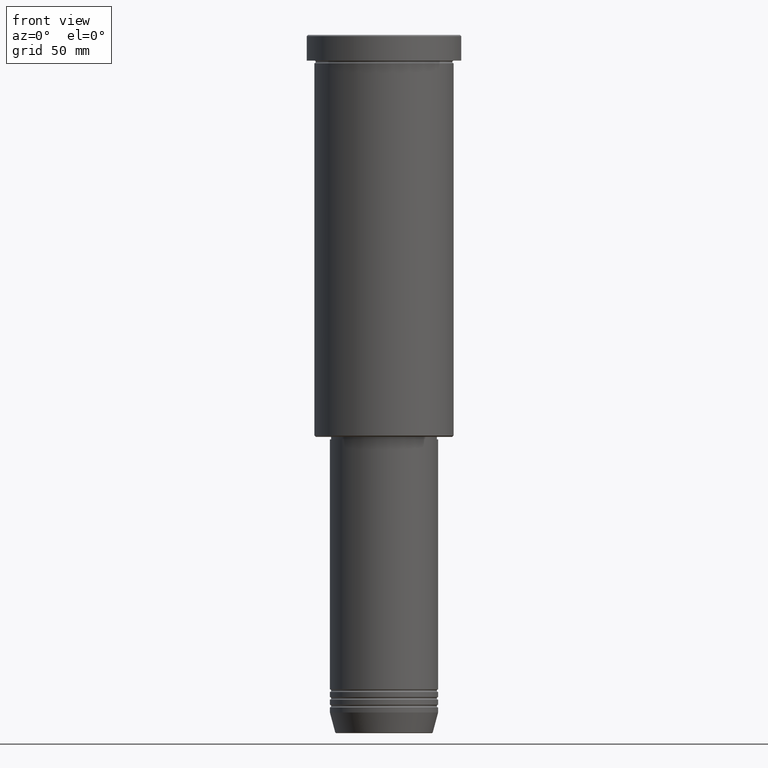
[diagram: clean part render]
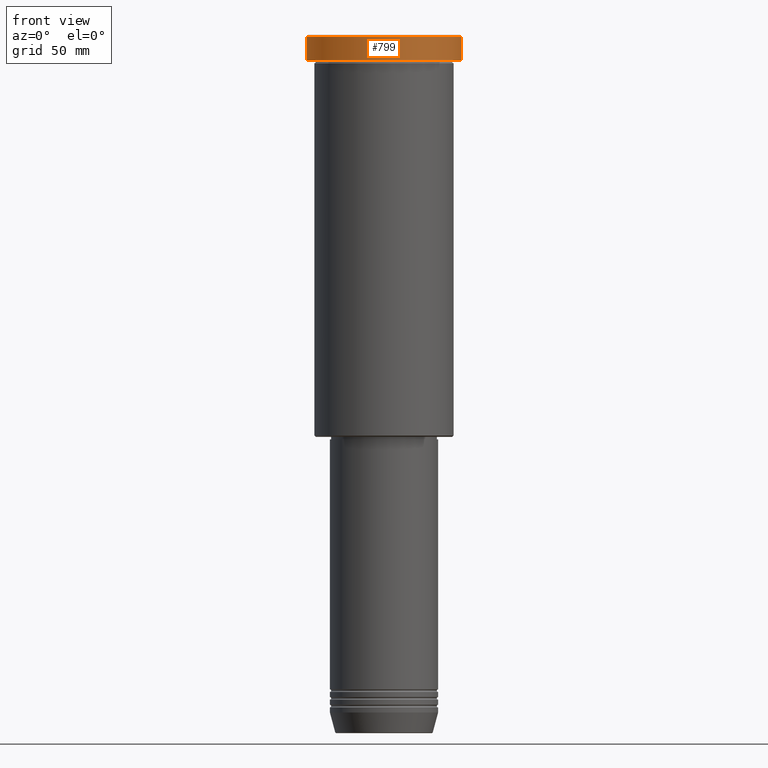
[diagram: same view with one face highlighted and labeled with its STEP entity id]
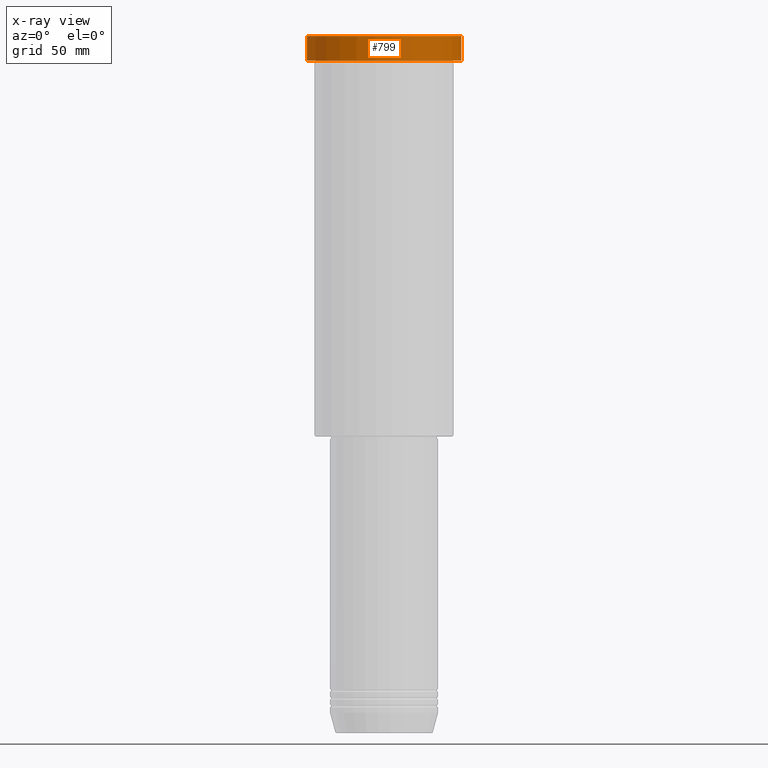
[diagram: x-ray of the same camera — body ghosted, the highlighted face saturated]
A machine part, front view. The second image highlights one B-rep face of the part: STEP entity #799.
The next image is the same camera in x-ray: the body ghosted, the highlighted face saturated — about 0% of this face is hidden behind the body in this view.
In plain terms, the highlighted cylindrical surface (partial cylindrical patch) has radius 30 mm, axis along (-0, -0, 1).
Its self-contained STEP definition (entity closure, byte-faithful):
#12 = CARTESIAN_POINT ( 'NONE',  ( 0.000000000000000000, 0.000000000000000000, -9.999999999999992895 ) ) ;
#29 = EDGE_LOOP ( 'NONE', ( #503, #717, #559, #61 ) ) ;
#61 = ORIENTED_EDGE ( 'NONE', *, *, #1008, .T. ) ;
#68 = AXIS2_PLACEMENT_3D ( 'NONE', #443, #359, #543 ) ;
#103 = LINE ( 'NONE', #581, #427 ) ;
#146 = FACE_OUTER_BOUND ( 'NONE', #29, .T. ) ;
#201 = AXIS2_PLACEMENT_3D ( 'NONE', #12, #286, #835 ) ;
#232 = CARTESIAN_POINT ( 'NONE',  ( 30.00000000000000000, 0.000000000000000000, -0.4999999999999796274 ) ) ;
#252 = VERTEX_POINT ( 'NONE', #1177 ) ;
#286 = DIRECTION ( 'NONE',  ( -0.000000000000000000, -0.000000000000000000, 1.000000000000000000 ) ) ;
#288 = DIRECTION ( 'NONE',  ( -0.000000000000000000, -0.000000000000000000, 1.000000000000000000 ) ) ;
#335 = DIRECTION ( 'NONE',  ( 1.000000000000000000, 0.000000000000000000, 0.000000000000000000 ) ) ;
#343 = CYLINDRICAL_SURFACE ( 'NONE', #565, 30.00000000000000000 ) ;
#359 = DIRECTION ( 'NONE',  ( 0.000000000000000000, 0.000000000000000000, -1.000000000000000000 ) ) ;
#378 = VERTEX_POINT ( 'NONE', #675 ) ;
#425 = EDGE_CURVE ( 'NONE', #252, #574, #103, .T. ) ;
#427 = VECTOR ( 'NONE', #288, 1000.000000000000000 ) ;
#443 = CARTESIAN_POINT ( 'NONE',  ( 0.000000000000000000, 0.000000000000000000, -0.4999999999999796274 ) ) ;
#466 = CIRCLE ( 'NONE', #201, 30.00000000000000000 ) ;
#503 = ORIENTED_EDGE ( 'NONE', *, *, #425, .F. ) ;
#528 = CIRCLE ( 'NONE', #68, 30.00000000000000000 ) ;
#543 = DIRECTION ( 'NONE',  ( 1.000000000000000000, 0.000000000000000000, 0.000000000000000000 ) ) ;
#559 = ORIENTED_EDGE ( 'NONE', *, *, #1010, .T. ) ;
#565 = AXIS2_PLACEMENT_3D ( 'NONE', #1148, #791, #335 ) ;
#574 = VERTEX_POINT ( 'NONE', #1070 ) ;
#581 = CARTESIAN_POINT ( 'NONE',  ( -30.00000000000000000, 3.673940397442059178E-15, 0.000000000000000000 ) ) ;
#637 = LINE ( 'NONE', #643, #1134 ) ;
#643 = CARTESIAN_POINT ( 'NONE',  ( 30.00000000000000000, 0.000000000000000000, 0.000000000000000000 ) ) ;
#653 = DIRECTION ( 'NONE',  ( -0.000000000000000000, -0.000000000000000000, 1.000000000000000000 ) ) ;
#675 = CARTESIAN_POINT ( 'NONE',  ( 30.00000000000000000, 0.000000000000000000, -9.999999999999992895 ) ) ;
#717 = ORIENTED_EDGE ( 'NONE', *, *, #998, .T. ) ;
#791 = DIRECTION ( 'NONE',  ( -0.000000000000000000, -0.000000000000000000, 1.000000000000000000 ) ) ;
#799 = ADVANCED_FACE ( 'NONE', ( #146 ), #343, .T. ) ;
#835 = DIRECTION ( 'NONE',  ( 1.000000000000000000, 0.000000000000000000, 0.000000000000000000 ) ) ;
#998 = EDGE_CURVE ( 'NONE', #252, #378, #466, .T. ) ;
#1008 = EDGE_CURVE ( 'NONE', #1122, #574, #528, .T. ) ;
#1010 = EDGE_CURVE ( 'NONE', #378, #1122, #637, .T. ) ;
#1070 = CARTESIAN_POINT ( 'NONE',  ( -30.00000000000000000, 3.673940397442059178E-15, -0.4999999999999796274 ) ) ;
#1122 = VERTEX_POINT ( 'NONE', #232 ) ;
#1134 = VECTOR ( 'NONE', #653, 1000.000000000000000 ) ;
#1148 = CARTESIAN_POINT ( 'NONE',  ( 0.000000000000000000, 0.000000000000000000, 0.000000000000000000 ) ) ;
#1177 = CARTESIAN_POINT ( 'NONE',  ( -30.00000000000000000, 3.673940397442059178E-15, -9.999999999999992895 ) ) ;